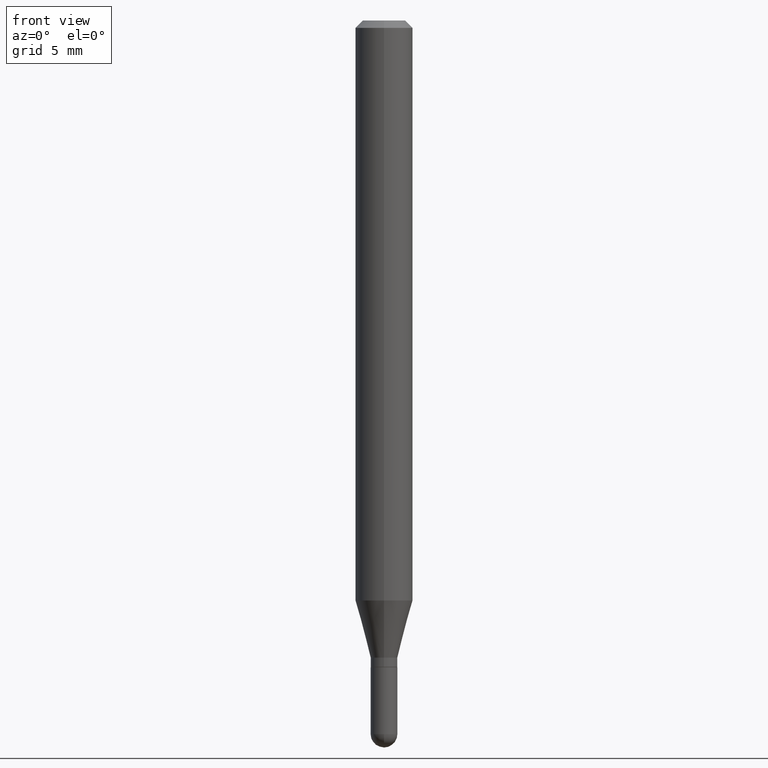
[diagram: clean part render]
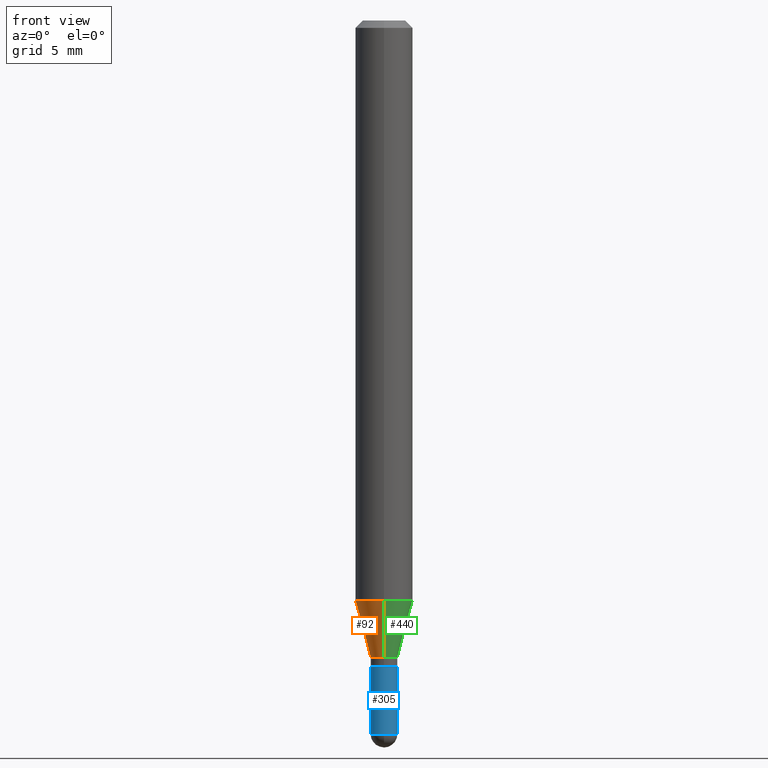
[diagram: same view with three faces highlighted in distinct colors, each labeled with its STEP entity id]
A machine part, front view with three faces highlighted in distinct colors.
Their STEP definitions:

[orange] entity #92 — the highlighted conical surface has half-angle 15 deg.
#16 = CARTESIAN_POINT ( 'NONE',  ( -1.923806217702240553E-16, -0.02755000000000450144, -1.311099999999999932 ) ) ;
#27 = CARTESIAN_POINT ( 'NONE',  ( 2.918769859605206058E-29, -4.167218241622863015E-15, -1.193540399561580534 ) ) ;
#40 = CARTESIAN_POINT ( 'NONE',  ( 3.076650045841537882E-16, 0.02754999999999534904, -1.311099999999999932 ) ) ;
#51 = VECTOR ( 'NONE', #212, 39.37007874015748854 ) ;
#55 = DIRECTION ( 'NONE',  ( -2.445472194051704055E-29, 3.491476487225395476E-15, 1.000000000000000000 ) ) ;
#67 = CARTESIAN_POINT ( 'NONE',  ( 4.195754854663680892E-16, 0.05904999999999580723, -1.193540399561580756 ) ) ;
#79 = AXIS2_PLACEMENT_3D ( 'NONE', #283, #55, #328 ) ;
#92 = ADVANCED_FACE ( 'NONE', ( #159 ), #392, .T. ) ;
#109 = ORIENTED_EDGE ( 'NONE', *, *, #341, .T. ) ;
#111 = DIRECTION ( 'NONE',  ( -6.982962677686265922E-15, -1.000000000000000000, 4.626330217890369336E-15 ) ) ;
#133 = LINE ( 'NONE', #248, #200 ) ;
#159 = FACE_OUTER_BOUND ( 'NONE', #357, .T. ) ;
#161 = EDGE_CURVE ( 'NONE', #273, #402, #133, .T. ) ;
#181 = DIRECTION ( 'NONE',  ( -2.445472194051704055E-29, 3.491476487225395476E-15, 1.000000000000000000 ) ) ;
#186 = VERTEX_POINT ( 'NONE', #16 ) ;
#200 = VECTOR ( 'NONE', #297, 39.37007874015748854 ) ;
#212 = DIRECTION ( 'NONE',  ( -1.807323732225333689E-15, -0.2588190451025186856, 0.9659258262890687563 ) ) ;
#228 = ORIENTED_EDGE ( 'NONE', *, *, #395, .T. ) ;
#248 = CARTESIAN_POINT ( 'NONE',  ( 1.957545237019390929E-16, 0.02754999999999534904, -1.311099999999999932 ) ) ;
#256 = EDGE_CURVE ( 'NONE', #402, #261, #272, .T. ) ;
#258 = ORIENTED_EDGE ( 'NONE', *, *, #161, .F. ) ;
#261 = VERTEX_POINT ( 'NONE', #483 ) ;
#272 = CIRCLE ( 'NONE', #471, 0.05904999999999999832 ) ;
#273 = VERTEX_POINT ( 'NONE', #40 ) ;
#283 = CARTESIAN_POINT ( 'NONE',  ( 3.206258593621188259E-29, -4.577674822401215299E-15, -1.311099999999999932 ) ) ;
#297 = DIRECTION ( 'NONE',  ( 1.839019923739603865E-15, 0.2588190451025254579, 0.9659258262890669799 ) ) ;
#299 = LINE ( 'NONE', #330, #51 ) ;
#314 = ORIENTED_EDGE ( 'NONE', *, *, #256, .F. ) ;
#317 = CIRCLE ( 'NONE', #411, 0.02754999999999992524 ) ;
#328 = DIRECTION ( 'NONE',  ( -6.982962677686265922E-15, -1.000000000000000000, 0.000000000000000000 ) ) ;
#330 = CARTESIAN_POINT ( 'NONE',  ( -1.923806217702240553E-16, -0.02755000000000450144, -1.311099999999999932 ) ) ;
#341 = EDGE_CURVE ( 'NONE', #186, #261, #299, .T. ) ;
#342 = CARTESIAN_POINT ( 'NONE',  ( 3.206258593621188259E-29, -4.577674822401215299E-15, -1.311099999999999932 ) ) ;
#344 = DIRECTION ( 'NONE',  ( -2.445472194051704055E-29, 3.491476487225395476E-15, 1.000000000000000000 ) ) ;
#357 = EDGE_LOOP ( 'NONE', ( #258, #228, #109, #314 ) ) ;
#392 = CONICAL_SURFACE ( 'NONE', #79, 0.02754999999999992524, 0.2617993877991508511 ) ;
#395 = EDGE_CURVE ( 'NONE', #273, #186, #317, .T. ) ;
#402 = VERTEX_POINT ( 'NONE', #67 ) ;
#411 = AXIS2_PLACEMENT_3D ( 'NONE', #342, #344, #496 ) ;
#471 = AXIS2_PLACEMENT_3D ( 'NONE', #27, #181, #111 ) ;
#483 = CARTESIAN_POINT ( 'NONE',  ( -4.123439461173449928E-16, -0.05905000000000418248, -1.193540399561580534 ) ) ;
#496 = DIRECTION ( 'NONE',  ( -6.982962677686265922E-15, -1.000000000000000000, 0.000000000000000000 ) ) ;

[blue] entity #305 — the highlighted cylindrical surface (edge-blend (fillet) strip) has radius 0.6998 mm, axis along (-0, 0, 1).
#1 = EDGE_CURVE ( 'NONE', #76, #221, #157, .T. ) ;
#8 = DIRECTION ( 'NONE',  ( 1.000000000000000000, -6.982962677686256455E-15, 0.000000000000000000 ) ) ;
#31 = ORIENTED_EDGE ( 'NONE', *, *, #278, .T. ) ;
#39 = VERTEX_POINT ( 'NONE', #412 ) ;
#48 = CARTESIAN_POINT ( 'NONE',  ( -0.02754999999999999810, -4.691010045176429992E-15, -1.468549999999999800 ) ) ;
#52 = CARTESIAN_POINT ( 'NONE',  ( 3.591293215323181808E-29, -5.127414920158100475E-15, -1.468549999999999800 ) ) ;
#72 = AXIS2_PLACEMENT_3D ( 'NONE', #510, #153, #8 ) ;
#75 = DIRECTION ( 'NONE',  ( 1.000000000000000000, -6.982962677686265922E-15, 4.876176775795936353E-29 ) ) ;
#76 = VERTEX_POINT ( 'NONE', #48 ) ;
#83 = DIRECTION ( 'NONE',  ( -2.445468806185136877E-29, 3.491481338843145188E-15, 1.000000000000000000 ) ) ;
#99 = CARTESIAN_POINT ( 'NONE',  ( -0.02755000000000000157, -4.691010045176429992E-15, -1.330699999999999772 ) ) ;
#113 = CARTESIAN_POINT ( 'NONE',  ( 0.000000000000000000, 0.000000000000000000, 0.000000000000000000 ) ) ;
#119 = CARTESIAN_POINT ( 'NONE',  ( 0.02754999999999999810, -1.923806217702566205E-16, 1.343386701731780333E-30 ) ) ;
#131 = CIRCLE ( 'NONE', #446, 0.02754999999999999810 ) ;
#138 = DIRECTION ( 'NONE',  ( -2.445468806185136597E-29, 3.491481338843145583E-15, 1.000000000000000000 ) ) ;
#146 = FACE_OUTER_BOUND ( 'NONE', #431, .T. ) ;
#147 = ORIENTED_EDGE ( 'NONE', *, *, #1, .F. ) ;
#150 = CYLINDRICAL_SURFACE ( 'NONE', #414, 0.02754999999999999810 ) ;
#153 = DIRECTION ( 'NONE',  ( -2.445468806185136597E-29, 3.491481338843145583E-15, 1.000000000000000000 ) ) ;
#157 = LINE ( 'NONE', #243, #367 ) ;
#163 = CARTESIAN_POINT ( 'NONE',  ( 0.02755000000000000157, -4.838494839368829407E-15, -1.330699999999999772 ) ) ;
#173 = CIRCLE ( 'NONE', #72, 0.02755000000000000157 ) ;
#195 = VERTEX_POINT ( 'NONE', #224 ) ;
#202 = EDGE_CURVE ( 'NONE', #195, #39, #131, .T. ) ;
#220 = ORIENTED_EDGE ( 'NONE', *, *, #202, .T. ) ;
#221 = VERTEX_POINT ( 'NONE', #99 ) ;
#224 = CARTESIAN_POINT ( 'NONE',  ( -1.923806217702208999E-16, -0.02755000000000515370, -1.468549999999999800 ) ) ;
#243 = CARTESIAN_POINT ( 'NONE',  ( -0.02754999999999999810, 1.957545237019075877E-16, -1.355166617365226390E-30 ) ) ;
#245 = ORIENTED_EDGE ( 'NONE', *, *, #311, .F. ) ;
#264 = DIRECTION ( 'NONE',  ( 1.000000000000000000, -6.982962677686257244E-15, 0.000000000000000000 ) ) ;
#276 = DIRECTION ( 'NONE',  ( -2.445468806185136597E-29, 3.491481338843145583E-15, 1.000000000000000000 ) ) ;
#278 = EDGE_CURVE ( 'NONE', #39, #441, #405, .T. ) ;
#305 = ADVANCED_FACE ( 'NONE', ( #146 ), #150, .T. ) ;
#311 = EDGE_CURVE ( 'NONE', #221, #441, #173, .T. ) ;
#336 = DIRECTION ( 'NONE',  ( 1.000000000000000000, -6.982962677686257244E-15, 0.000000000000000000 ) ) ;
#359 = EDGE_CURVE ( 'NONE', #76, #195, #456, .T. ) ;
#367 = VECTOR ( 'NONE', #388, 39.37007874015748143 ) ;
#380 = DIRECTION ( 'NONE',  ( -2.445468806185136597E-29, 3.491481338843145583E-15, 1.000000000000000000 ) ) ;
#388 = DIRECTION ( 'NONE',  ( -2.445468806185136877E-29, 3.491481338843145188E-15, 1.000000000000000000 ) ) ;
#400 = ORIENTED_EDGE ( 'NONE', *, *, #359, .T. ) ;
#405 = LINE ( 'NONE', #119, #509 ) ;
#412 = CARTESIAN_POINT ( 'NONE',  ( 0.02754999999999999810, -5.079145190648592548E-15, -1.468549999999999800 ) ) ;
#414 = AXIS2_PLACEMENT_3D ( 'NONE', #113, #276, #75 ) ;
#431 = EDGE_LOOP ( 'NONE', ( #147, #400, #220, #31, #245 ) ) ;
#441 = VERTEX_POINT ( 'NONE', #163 ) ;
#446 = AXIS2_PLACEMENT_3D ( 'NONE', #502, #138, #264 ) ;
#456 = CIRCLE ( 'NONE', #477, 0.02754999999999999810 ) ;
#477 = AXIS2_PLACEMENT_3D ( 'NONE', #52, #380, #336 ) ;
#502 = CARTESIAN_POINT ( 'NONE',  ( 3.591293215323181808E-29, -5.127414920158100475E-15, -1.468549999999999800 ) ) ;
#509 = VECTOR ( 'NONE', #83, 39.37007874015748143 ) ;
#510 = CARTESIAN_POINT ( 'NONE',  ( 3.254185340390560677E-29, -4.646114217598572614E-15, -1.330699999999999772 ) ) ;

[green] entity #440 — the highlighted conical surface has half-angle 15 deg.
#16 = CARTESIAN_POINT ( 'NONE',  ( -1.923806217702240553E-16, -0.02755000000000450144, -1.311099999999999932 ) ) ;
#22 = AXIS2_PLACEMENT_3D ( 'NONE', #115, #77, #482 ) ;
#35 = EDGE_LOOP ( 'NONE', ( #512, #237, #231, #390 ) ) ;
#40 = CARTESIAN_POINT ( 'NONE',  ( 3.076650045841537882E-16, 0.02754999999999534904, -1.311099999999999932 ) ) ;
#51 = VECTOR ( 'NONE', #212, 39.37007874015748854 ) ;
#62 = DIRECTION ( 'NONE',  ( -2.445472194051704055E-29, 3.491476487225395476E-15, 1.000000000000000000 ) ) ;
#67 = CARTESIAN_POINT ( 'NONE',  ( 4.195754854663680892E-16, 0.05904999999999580723, -1.193540399561580756 ) ) ;
#77 = DIRECTION ( 'NONE',  ( -2.445472194051704055E-29, 3.491476487225395476E-15, 1.000000000000000000 ) ) ;
#115 = CARTESIAN_POINT ( 'NONE',  ( 3.206258593621188259E-29, -4.577674822401215299E-15, -1.311099999999999932 ) ) ;
#129 = CONICAL_SURFACE ( 'NONE', #22, 0.02754999999999992524, 0.2617993877991508511 ) ;
#133 = LINE ( 'NONE', #248, #200 ) ;
#161 = EDGE_CURVE ( 'NONE', #273, #402, #133, .T. ) ;
#186 = VERTEX_POINT ( 'NONE', #16 ) ;
#200 = VECTOR ( 'NONE', #297, 39.37007874015748854 ) ;
#212 = DIRECTION ( 'NONE',  ( -1.807323732225333689E-15, -0.2588190451025186856, 0.9659258262890687563 ) ) ;
#223 = AXIS2_PLACEMENT_3D ( 'NONE', #428, #62, #230 ) ;
#230 = DIRECTION ( 'NONE',  ( -6.982962677686265922E-15, -1.000000000000000000, 0.000000000000000000 ) ) ;
#231 = ORIENTED_EDGE ( 'NONE', *, *, #247, .F. ) ;
#237 = ORIENTED_EDGE ( 'NONE', *, *, #161, .T. ) ;
#247 = EDGE_CURVE ( 'NONE', #261, #402, #495, .T. ) ;
#248 = CARTESIAN_POINT ( 'NONE',  ( 1.957545237019390929E-16, 0.02754999999999534904, -1.311099999999999932 ) ) ;
#260 = CARTESIAN_POINT ( 'NONE',  ( 2.918769859605206058E-29, -4.167218241622863015E-15, -1.193540399561580534 ) ) ;
#261 = VERTEX_POINT ( 'NONE', #483 ) ;
#265 = DIRECTION ( 'NONE',  ( -6.982962677686265922E-15, -1.000000000000000000, 4.626330217890369336E-15 ) ) ;
#271 = AXIS2_PLACEMENT_3D ( 'NONE', #260, #356, #265 ) ;
#273 = VERTEX_POINT ( 'NONE', #40 ) ;
#297 = DIRECTION ( 'NONE',  ( 1.839019923739603865E-15, 0.2588190451025254579, 0.9659258262890669799 ) ) ;
#299 = LINE ( 'NONE', #330, #51 ) ;
#330 = CARTESIAN_POINT ( 'NONE',  ( -1.923806217702240553E-16, -0.02755000000000450144, -1.311099999999999932 ) ) ;
#341 = EDGE_CURVE ( 'NONE', #186, #261, #299, .T. ) ;
#356 = DIRECTION ( 'NONE',  ( -2.445472194051704055E-29, 3.491476487225395476E-15, 1.000000000000000000 ) ) ;
#360 = FACE_OUTER_BOUND ( 'NONE', #35, .T. ) ;
#390 = ORIENTED_EDGE ( 'NONE', *, *, #341, .F. ) ;
#402 = VERTEX_POINT ( 'NONE', #67 ) ;
#421 = CIRCLE ( 'NONE', #223, 0.02754999999999992524 ) ;
#426 = EDGE_CURVE ( 'NONE', #186, #273, #421, .T. ) ;
#428 = CARTESIAN_POINT ( 'NONE',  ( 3.206258593621188259E-29, -4.577674822401215299E-15, -1.311099999999999932 ) ) ;
#440 = ADVANCED_FACE ( 'NONE', ( #360 ), #129, .T. ) ;
#482 = DIRECTION ( 'NONE',  ( -6.982962677686265922E-15, -1.000000000000000000, 0.000000000000000000 ) ) ;
#483 = CARTESIAN_POINT ( 'NONE',  ( -4.123439461173449928E-16, -0.05905000000000418248, -1.193540399561580534 ) ) ;
#495 = CIRCLE ( 'NONE', #271, 0.05904999999999999832 ) ;
#512 = ORIENTED_EDGE ( 'NONE', *, *, #426, .T. ) ;